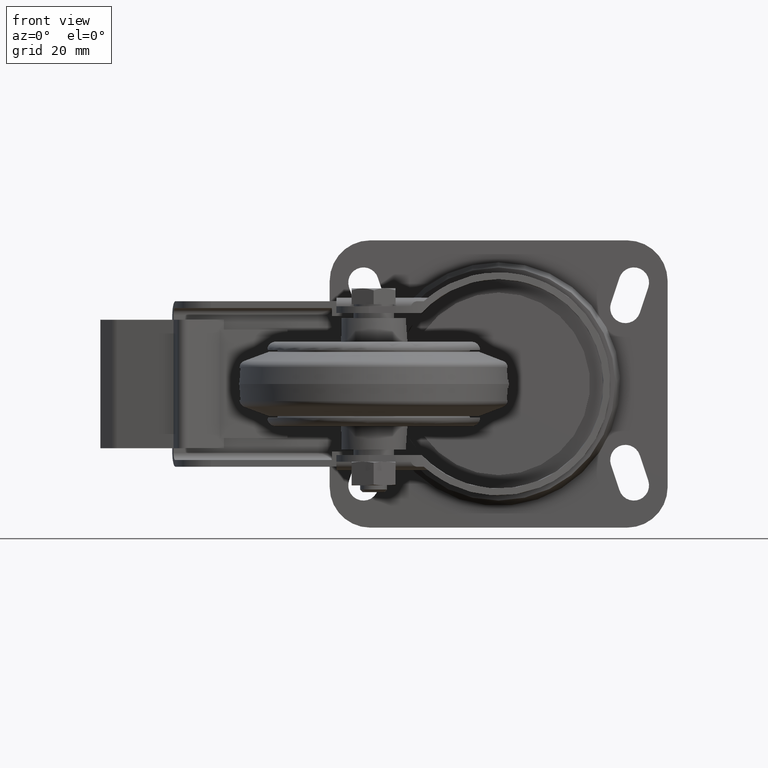
[diagram: clean part render]
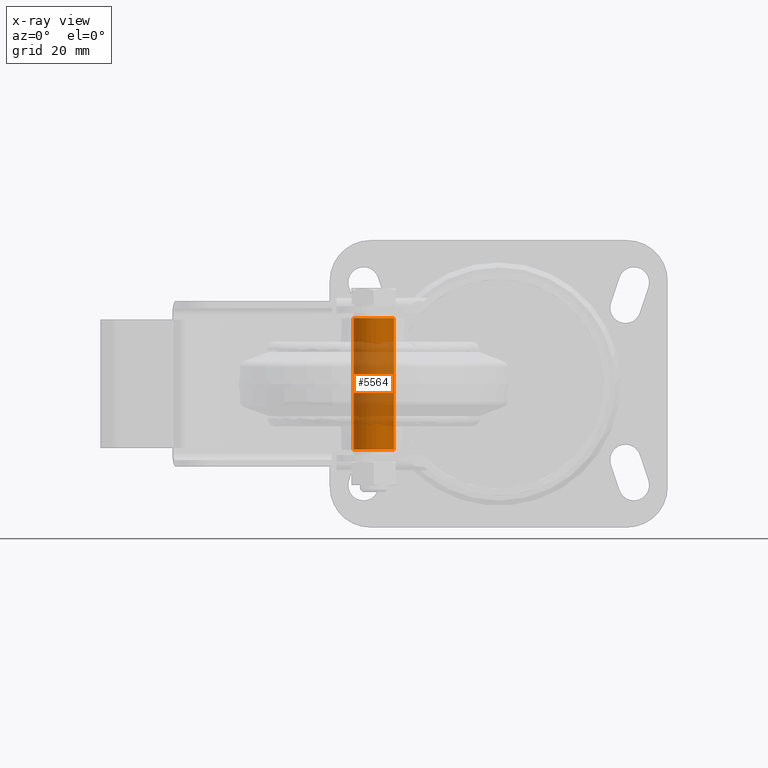
[diagram: x-ray — body ghosted, one internal face saturated and labeled with its STEP entity id]
A machine part, front view, then the same camera in x-ray: the body is ghosted and one INTERNAL B-rep face — a face not visible from any outside direction — is saturated and labeled: STEP entity #5564.
In plain terms, the highlighted cylindrical surface (bore or boss wall) has radius 6 mm, axis along (0, 0, 1).
Its self-contained STEP definition (entity closure, byte-faithful):
#368=CYLINDRICAL_SURFACE('',#5914,6.);
#1488=FACE_BOUND('',#1945,.T.);
#1610=FACE_OUTER_BOUND('',#1944,.T.);
#1944=EDGE_LOOP('',(#3964));
#1945=EDGE_LOOP('',(#3965));
#2340=CIRCLE('',#5905,6.);
#2344=CIRCLE('',#5913,6.);
#2570=VERTEX_POINT('',#8150);
#2574=VERTEX_POINT('',#8162);
#3120=EDGE_CURVE('',#2570,#2570,#2340,.T.);
#3124=EDGE_CURVE('',#2574,#2574,#2344,.T.);
#3964=ORIENTED_EDGE('',*,*,#3124,.T.);
#3965=ORIENTED_EDGE('',*,*,#3120,.F.);
#5564=ADVANCED_FACE('',(#1610,#1488),#368,.F.);
#5905=AXIS2_PLACEMENT_3D('',#8151,#6551,#6552);
#5913=AXIS2_PLACEMENT_3D('',#8163,#6567,#6568);
#5914=AXIS2_PLACEMENT_3D('',#8164,#6569,#6570);
#6551=DIRECTION('center_axis',(1.,0.,0.));
#6552=DIRECTION('ref_axis',(0.,0.,-1.));
#6567=DIRECTION('center_axis',(1.,0.,0.));
#6568=DIRECTION('ref_axis',(0.,0.,-1.));
#6569=DIRECTION('center_axis',(-1.,0.,0.));
#6570=DIRECTION('ref_axis',(0.,0.,-1.));
#8150=CARTESIAN_POINT('',(0.,0.,-6.));
#8151=CARTESIAN_POINT('Origin',(0.,0.,0.));
#8162=CARTESIAN_POINT('',(39.,0.,-6.));
#8163=CARTESIAN_POINT('Origin',(39.,0.,0.));
#8164=CARTESIAN_POINT('Origin',(19.5,0.,0.));